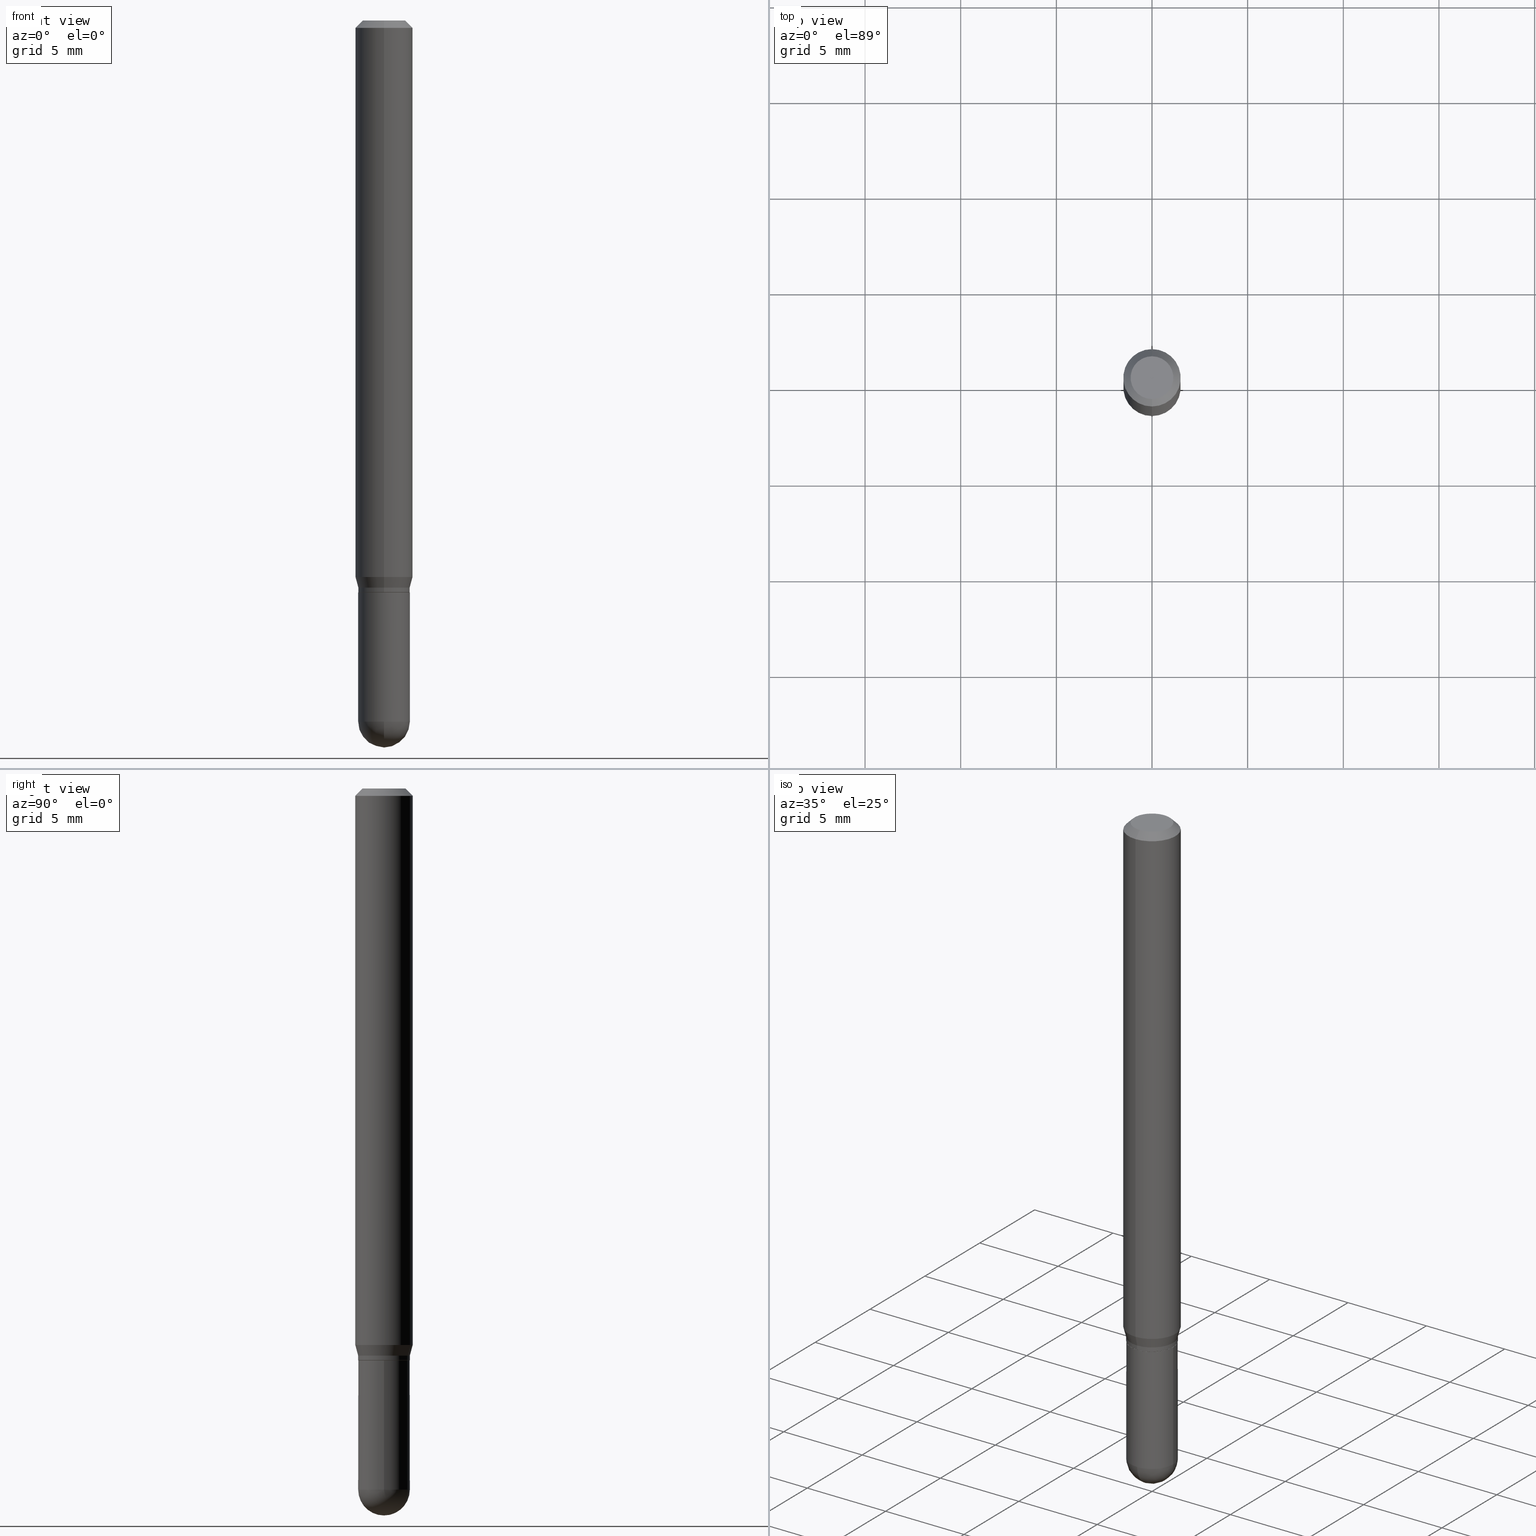
[diagram: canonical four-view strip — front | top / right | iso, engineering-drawing reading convention]
A machine part, canonical four-view strip (front | top / right | iso — engineering-drawing reading convention). The complete STEP part file that produces these views, byte-faithful:
ISO-10303-21;
HEADER;
FILE_DESCRIPTION (( 'STEP AP203' ),
    '1' );
FILE_NAME ('02976.STEP',
    '2024-03-07T22:15:17',
    ( '' ),
    ( '' ),
    'SwSTEP 2.0',
    'SolidWorks 2023',
    '' );
FILE_SCHEMA (( 'CONFIG_CONTROL_DESIGN' ));
ENDSEC;

DATA;
#1 = CYLINDRICAL_SURFACE ( 'NONE', #380, 0.05315000000000005831 ) ;
#2 = PERSON_AND_ORGANIZATION_ROLE ( 'design_owner' ) ;
#3 = EDGE_LOOP ( 'NONE', ( #191, #205, #479, #405 ) ) ;
#4 = EDGE_CURVE ( 'NONE', #225, #394, #244, .T. ) ;
#5 = FACE_OUTER_BOUND ( 'NONE', #474, .T. ) ;
#6 = ORIENTED_EDGE ( 'NONE', *, *, #375, .T. ) ;
#7 = CALENDAR_DATE ( 2024, 7, 3 ) ;
#8 = AXIS2_PLACEMENT_3D ( 'NONE', #67, #184, #473 ) ;
#9 = DIRECTION ( 'NONE',  ( -2.445529558203233755E-29, 3.491394338495440431E-15, 1.000000000000000000 ) ) ;
#10 = VERTEX_POINT ( 'NONE', #155 ) ;
#11 = CALENDAR_DATE ( 2024, 7, 3 ) ;
#12 = CARTESIAN_POINT ( 'NONE',  ( 2.877654631137744855E-29, -4.108323718107584800E-15, -1.176699999999999857 ) ) ;
#13 = ORIENTED_EDGE ( 'NONE', *, *, #189, .F. ) ;
#14 = DIMENSIONAL_EXPONENTS ( 1.000000000000000000, 0.000000000000000000, 0.000000000000000000, 0.000000000000000000, 0.000000000000000000, 0.000000000000000000, 0.000000000000000000 ) ;
#15 = DIRECTION ( 'NONE',  ( -2.445529558203233755E-29, 3.491394338495440431E-15, 1.000000000000000000 ) ) ;
#16 = ORIENTED_EDGE ( 'NONE', *, *, #285, .T. ) ;
#17 = EDGE_CURVE ( 'NONE', #70, #512, #123, .T. ) ;
#18 = DIRECTION ( 'NONE',  ( -2.445468806185136597E-29, 3.491481338843145583E-15, 1.000000000000000000 ) ) ;
#19 = CARTESIAN_POINT ( 'NONE',  ( 3.668294337304873001E-31, -5.237091507743192669E-17, -0.01500000000000009139 ) ) ;
#20 = VECTOR ( 'NONE', #226, 39.37007874015748143 ) ;
#21 = CARTESIAN_POINT ( 'NONE',  ( 2.854422100334814003E-29, -4.075155471891877545E-15, -1.167200000000000015 ) ) ;
#22 = CARTESIAN_POINT ( 'NONE',  ( 0.000000000000000000, 0.000000000000000000, 0.000000000000000000 ) ) ;
#23 = APPLICATION_CONTEXT ( 'configuration controlled 3d designs of mechanical parts and assemblies' ) ;
#24 = EDGE_CURVE ( 'NONE', #115, #266, #98, .T. ) ;
#25 = CARTESIAN_POINT ( 'NONE',  ( 3.986144747614447305E-16, 0.05314999999999599212, -1.167200000000000015 ) ) ;
#26 = AXIS2_PLACEMENT_3D ( 'NONE', #374, #412, #138 ) ;
#27 = DIRECTION ( 'NONE',  ( 2.445529558203233475E-29, -3.491394338495440431E-15, -1.000000000000000000 ) ) ;
#28 = DIRECTION ( 'NONE',  ( -6.982962677686266711E-15, -1.000000000000000000, 3.491394338495440431E-15 ) ) ;
#29 = CONICAL_SURFACE ( 'NONE', #173, 0.05904999999999999832, 0.7853981633974483900 ) ;
#30 = EDGE_LOOP ( 'NONE', ( #77, #160, #112, #439 ) ) ;
#31 =( LENGTH_UNIT ( ) NAMED_UNIT ( * ) SI_UNIT ( $, .METRE. ) );
#32 = VERTEX_POINT ( 'NONE', #510 ) ;
#33 = ADVANCED_FACE ( 'NONE', ( #5 ), #334, .T. ) ;
#34 = DIRECTION ( 'NONE',  ( -2.445529558203233755E-29, 3.491394338495440431E-15, 1.000000000000000000 ) ) ;
#35 = VERTEX_POINT ( 'NONE', #154 ) ;
#36 = CYLINDRICAL_SURFACE ( 'NONE', #103, 0.05904999999999999832 ) ;
#37 = PERSON_AND_ORGANIZATION ( #78, #256 ) ;
#38 = ORIENTED_EDGE ( 'NONE', *, *, #506, .F. ) ;
#39 = APPROVAL_PERSON_ORGANIZATION ( #37, #56, #437 ) ;
#40 = DIRECTION ( 'NONE',  ( -2.445468806185136597E-29, 3.491481338843145583E-15, 1.000000000000000000 ) ) ;
#41 = CARTESIAN_POINT ( 'NONE',  ( 2.878877395916846125E-29, -4.110069415276832052E-15, -1.177200000000000024 ) ) ;
#42 = ORIENTED_EDGE ( 'NONE', *, *, #24, .F. ) ;
#43 = DIRECTION ( 'NONE',  ( -1.000000000000000000, 6.982962677686265922E-15, -4.876176775795935793E-29 ) ) ;
#44 = ORIENTED_EDGE ( 'NONE', *, *, #181, .F. ) ;
#45 = CIRCLE ( 'NONE', #55, 0.05265000000000000235 ) ;
#46 = CARTESIAN_POINT ( 'NONE',  ( 3.524144005057854329E-29, -5.044541995621184733E-15, -1.442949999999999955 ) ) ;
#47 = ORIENTED_EDGE ( 'NONE', *, *, #97, .F. ) ;
#48 = CARTESIAN_POINT ( 'NONE',  ( 4.195754854663672510E-16, 0.05904999999999994281, -0.01500000000000029955 ) ) ;
#49 = ORIENTED_EDGE ( 'NONE', *, *, #4, .T. ) ;
#50 = CARTESIAN_POINT ( 'NONE',  ( 3.651848067693100163E-29, -5.233368727649432255E-15, -1.496099999999999985 ) ) ;
#51 = DIRECTION ( 'NONE',  ( -2.445468806185136597E-29, 3.491481338843145583E-15, 1.000000000000000000 ) ) ;
#52 = CYLINDRICAL_SURFACE ( 'NONE', #495, 0.05315000000000000280 ) ;
#53 = DIRECTION ( 'NONE',  ( -6.982962677686265133E-15, -1.000000000000000000, 3.491394338495440037E-15 ) ) ;
#54 = AXIS2_PLACEMENT_3D ( 'NONE', #164, #168, #332 ) ;
#55 = AXIS2_PLACEMENT_3D ( 'NONE', #204, #9, #130 ) ;
#56 = APPROVAL ( #273, 'UNSPECIFIED' ) ;
#57 = AXIS2_PLACEMENT_3D ( 'NONE', #147, #264, #144 ) ;
#58 = CONICAL_SURFACE ( 'NONE', #214, 0.05315000000000005831, 0.2617993877991513507 ) ;
#59 = EDGE_CURVE ( 'NONE', #10, #35, #464, .T. ) ;
#60 = ADVANCED_FACE ( 'NONE', ( #396 ), #36, .T. ) ;
#61 = FACE_OUTER_BOUND ( 'NONE', #89, .T. ) ;
#62 = ORIENTED_EDGE ( 'NONE', *, *, #139, .F. ) ;
#63 = DIRECTION ( 'NONE',  ( 6.982962677686265922E-15, 1.000000000000000000, -3.505890868245046092E-15 ) ) ;
#64 = AXIS2_PLACEMENT_3D ( 'NONE', #19, #88, #373 ) ;
#65 = DIRECTION ( 'NONE',  ( -2.445529558203233755E-29, 3.491394338495440431E-15, 1.000000000000000000 ) ) ;
#66 = DIRECTION ( 'NONE',  ( -6.982962677686265922E-15, -1.000000000000000000, 2.594347572330734199E-15 ) ) ;
#67 = CARTESIAN_POINT ( 'NONE',  ( 3.528689213884843040E-29, -5.038032997883716336E-15, -1.442949999999999955 ) ) ;
#68 = ORIENTED_EDGE ( 'NONE', *, *, #4, .F. ) ;
#69 = CARTESIAN_POINT ( 'NONE',  ( -4.123439461173460774E-16, -0.05905000000000400207, -1.145180900235343913 ) ) ;
#70 = VERTEX_POINT ( 'NONE', #468 ) ;
#71 = DIRECTION ( 'NONE',  ( 5.024295867788190974E-15, 0.7071067811865681119, 0.7071067811865270336 ) ) ;
#72 = EDGE_LOOP ( 'NONE', ( #38, #485, #463, #320 ) ) ;
#73 = LOCAL_TIME ( 17, 15, 17.00000000000000000, #108 ) ;
#74 = CARTESIAN_POINT ( 'NONE',  ( -3.711444663189969169E-16, -0.05315000000000413144, -1.167199999999999793 ) ) ;
#75 = ADVANCED_FACE ( 'NONE', ( #186 ), #508, .T. ) ;
#76 = EDGE_CURVE ( 'NONE', #118, #232, #403, .T. ) ;
#77 = ORIENTED_EDGE ( 'NONE', *, *, #187, .F. ) ;
#78 = PERSON ( 'UNSPECIFIED', 'UNSPECIFIED', 'UNSPECIFIED', ('UNSPECIFIED'), ('UNSPECIFIED'), ('UNSPECIFIED') ) ;
#79 = CARTESIAN_POINT ( 'NONE',  ( 0.000000000000000000, 0.000000000000000000, 0.000000000000000000 ) ) ;
#80 = LINE ( 'NONE', #453, #489 ) ;
#81 = ORIENTED_EDGE ( 'NONE', *, *, #24, .T. ) ;
#82 = COORDINATED_UNIVERSAL_TIME_OFFSET ( 5, 0, .BEHIND. ) ;
#83 = CIRCLE ( 'NONE', #8, 0.05315000000000000280 ) ;
#84 = LINE ( 'NONE', #90, #95 ) ;
#85 = EDGE_LOOP ( 'NONE', ( #120, #217, #16, #105, #222 ) ) ;
#86 = ORIENTED_EDGE ( 'NONE', *, *, #236, .T. ) ;
#87 = CARTESIAN_POINT ( 'NONE',  ( 3.528689213884843040E-29, -5.038032997883716336E-15, -1.442949999999999955 ) ) ;
#88 = DIRECTION ( 'NONE',  ( -2.445529558203233755E-29, 3.491394338495440431E-15, 1.000000000000000000 ) ) ;
#89 = EDGE_LOOP ( 'NONE', ( #109, #421, #368, #197 ) ) ;
#90 = CARTESIAN_POINT ( 'NONE',  ( 3.776534640564936138E-16, 0.05315000000000005831, -1.855676090910328648E-16 ) ) ;
#91 = DIRECTION ( 'NONE',  ( -6.982962677686265922E-15, -1.000000000000000000, 2.594347572330734199E-15 ) ) ;
#92 = DATE_AND_TIME ( #7, #190 ) ;
#93 = DIRECTION ( 'NONE',  ( -2.445529558203233755E-29, 3.491394338495440431E-15, 1.000000000000000000 ) ) ;
#94 = CARTESIAN_POINT ( 'NONE',  ( 2.878805878641142370E-29, -4.110171832086151297E-15, -1.177200000000000024 ) ) ;
#95 = VECTOR ( 'NONE', #119, 39.37007874015748143 ) ;
#96 = APPROVAL ( #206, 'UNSPECIFIED' ) ;
#97 = EDGE_CURVE ( 'NONE', #266, #203, #117, .T. ) ;
#98 = CIRCLE ( 'NONE', #298, 0.05904999999999999832 ) ;
#99 = EDGE_CURVE ( 'NONE', #512, #503, #196, .T. ) ;
#100 = CIRCLE ( 'NONE', #250, 0.05315000000000000280 ) ;
#101 = ORIENTED_EDGE ( 'NONE', *, *, #172, .F. ) ;
#102 = CARTESIAN_POINT ( 'NONE',  ( 3.741007503777215087E-16, 0.05264999999999589453, -1.177200000000000024 ) ) ;
#103 = AXIS2_PLACEMENT_3D ( 'NONE', #183, #261, #345 ) ;
#104 = AXIS2_PLACEMENT_3D ( 'NONE', #444, #367, #484 ) ;
#105 = ORIENTED_EDGE ( 'NONE', *, *, #243, .T. ) ;
#106 = CARTESIAN_POINT ( 'NONE',  ( 3.668294337304873001E-31, -5.237091507743192669E-17, -0.01500000000000009139 ) ) ;
#107 = UNCERTAINTY_MEASURE_WITH_UNIT (LENGTH_MEASURE( 1.000000000000000082E-05 ), #259, 'distance_accuracy_value', 'NONE');
#108 = COORDINATED_UNIVERSAL_TIME_OFFSET ( 5, 0, .BEHIND. ) ;
#109 = ORIENTED_EDGE ( 'NONE', *, *, #283, .F. ) ;
#110 = CARTESIAN_POINT ( 'NONE',  ( 2.241783815963458696E-45, -3.200513891533619113E-31, -9.166864528149599490E-17 ) ) ;
#111 = DIRECTION ( 'NONE',  ( 1.000000000000000000, -6.982962677686265922E-15, 4.883557194083112901E-29 ) ) ;
#112 = ORIENTED_EDGE ( 'NONE', *, *, #375, .F. ) ;
#113 = DIRECTION ( 'NONE',  ( -6.982962677686265922E-15, -1.000000000000000000, 3.491394338495440431E-15 ) ) ;
#114 = EDGE_CURVE ( 'NONE', #203, #503, #351, .T. ) ;
#115 = VERTEX_POINT ( 'NONE', #69 ) ;
#116 = CIRCLE ( 'NONE', #271, 0.05314999999999998198 ) ;
#117 = LINE ( 'NONE', #470, #20 ) ;
#118 = VERTEX_POINT ( 'NONE', #303 ) ;
#119 = DIRECTION ( 'NONE',  ( -2.445529558203233755E-29, 3.491394338495440431E-15, 1.000000000000000000 ) ) ;
#120 = ORIENTED_EDGE ( 'NONE', *, *, #291, .F. ) ;
#121 = DIRECTION ( 'NONE',  ( -2.445468806185136877E-29, 3.491481338843145188E-15, 1.000000000000000000 ) ) ;
#122 = PERSON_AND_ORGANIZATION_ROLE ( 'classification_officer' ) ;
#123 = CIRCLE ( 'NONE', #156, 0.04404999999999999888 ) ;
#124 = AXIS2_PLACEMENT_3D ( 'NONE', #21, #448, #242 ) ;
#125 = DIRECTION ( 'NONE',  ( -2.445529558203233755E-29, 3.491394338495440431E-15, 1.000000000000000000 ) ) ;
#126 = ORIENTED_EDGE ( 'NONE', *, *, #291, .T. ) ;
#127 = DIRECTION ( 'NONE',  ( -2.445529558203233755E-29, 3.491394338495440431E-15, 1.000000000000000000 ) ) ;
#128 = CARTESIAN_POINT ( 'NONE',  ( 2.854422100334814003E-29, -4.075155471891877545E-15, -1.167200000000000015 ) ) ;
#129 = SHAPE_DEFINITION_REPRESENTATION ( #436, #329 ) ;
#130 = DIRECTION ( 'NONE',  ( -6.982962677686265922E-15, -1.000000000000000000, 2.594347572330734199E-15 ) ) ;
#131 = CARTESIAN_POINT ( 'NONE',  ( -3.711444663189969662E-16, -0.05315000000000420777, -1.176699999999999857 ) ) ;
#132 = EDGE_CURVE ( 'NONE', #469, #269, #361, .T. ) ;
#133 = AXIS2_PLACEMENT_3D ( 'NONE', #312, #472, #113 ) ;
#134 = AXIS2_PLACEMENT_3D ( 'NONE', #328, #496, #300 ) ;
#135 = DIRECTION ( 'NONE',  ( -2.445529558203233755E-29, 3.491394338495440431E-15, 1.000000000000000000 ) ) ;
#136 = CLOSED_SHELL ( 'NONE', ( #150, #401, #75, #60, #142, #498, #179, #452, #344, #176, #33, #459 ) ) ;
#137 = CC_DESIGN_APPROVAL ( #56, ( #161 ) ) ;
#138 = DIRECTION ( 'NONE',  ( 1.000000000000000000, -6.982962677686260400E-15, 0.000000000000000000 ) ) ;
#139 = EDGE_CURVE ( 'NONE', #115, #503, #385, .T. ) ;
#140 = CC_DESIGN_DATE_AND_TIME_ASSIGNMENT ( #398, #322, ( #161 ) ) ;
#141 = DIRECTION ( 'NONE',  ( -6.982962677686265922E-15, -1.000000000000000000, 4.626330217890369336E-15 ) ) ;
#142 = ADVANCED_FACE ( 'NONE', ( #230 ), #422, .T. ) ;
#143 = ORIENTED_EDGE ( 'NONE', *, *, #450, .T. ) ;
#144 = DIRECTION ( 'NONE',  ( 6.982962677686265922E-15, 1.000000000000000000, -3.505890868245046092E-15 ) ) ;
#145 = VECTOR ( 'NONE', #402, 39.37007874015748143 ) ;
#146 = ORIENTED_EDGE ( 'NONE', *, *, #236, .F. ) ;
#147 = CARTESIAN_POINT ( 'NONE',  ( 3.668294337304873001E-31, -5.237091507743192669E-17, -0.01500000000000009139 ) ) ;
#148 = PERSON_AND_ORGANIZATION ( #78, #256 ) ;
#149 = ORIENTED_EDGE ( 'NONE', *, *, #76, .F. ) ;
#150 = ADVANCED_FACE ( 'NONE', ( #220 ), #1, .T. ) ;
#151 = DIRECTION ( 'NONE',  ( -2.445529558203233755E-29, 3.491394338495440431E-15, 1.000000000000000000 ) ) ;
#152 = DIRECTION ( 'NONE',  ( 1.000000000000000000, -7.105427357601001070E-15, 4.926315508542082329E-29 ) ) ;
#153 = ORIENTED_EDGE ( 'NONE', *, *, #243, .F. ) ;
#154 = CARTESIAN_POINT ( 'NONE',  ( 3.776534640565220621E-16, 0.05314999999999591579, -1.176700000000000079 ) ) ;
#155 = CARTESIAN_POINT ( 'NONE',  ( 3.758771072171219580E-16, 0.05264999999999589453, -1.177200000000000024 ) ) ;
#156 = AXIS2_PLACEMENT_3D ( 'NONE', #110, #501, #309 ) ;
#157 = APPROVAL_ROLE ( '' ) ;
#158 = AXIS2_PLACEMENT_3D ( 'NONE', #258, #460, #53 ) ;
#159 = DIRECTION ( 'NONE',  ( -6.982962677686265922E-15, -1.000000000000000000, 3.491394338495440431E-15 ) ) ;
#160 = ORIENTED_EDGE ( 'NONE', *, *, #506, .T. ) ;
#161 = PRODUCT_DEFINITION ( 'UNKNOWN', '', #211, #313 ) ;
#162 = PERSON_AND_ORGANIZATION ( #78, #256 ) ;
#163 = CARTESIAN_POINT ( 'NONE',  ( -0.05315000000000000280, -4.196448950928440351E-15, -1.177200000000000024 ) ) ;
#164 = CARTESIAN_POINT ( 'NONE',  ( 2.877654631137744855E-29, -4.108323718107584800E-15, -1.176699999999999857 ) ) ;
#165 = VERTEX_POINT ( 'NONE', #74 ) ;
#166 = PERSON_AND_ORGANIZATION ( #78, #256 ) ;
#167 = AXIS2_PLACEMENT_3D ( 'NONE', #365, #125, #159 ) ;
#168 = DIRECTION ( 'NONE',  ( -2.445529558203233755E-29, 3.491394338495440431E-15, 1.000000000000000000 ) ) ;
#169 = DATE_AND_TIME ( #481, #415 ) ;
#170 = DIRECTION ( 'NONE',  ( 1.000000000000000000, -6.982962677686267499E-15, 4.876176775795935232E-29 ) ) ;
#171 = DIRECTION ( 'NONE',  ( -2.445529558203233755E-29, 3.491394338495440431E-15, 1.000000000000000000 ) ) ;
#172 = EDGE_CURVE ( 'NONE', #442, #266, #234, .T. ) ;
#173 = AXIS2_PLACEMENT_3D ( 'NONE', #419, #488, #63 ) ;
#174 = LOCAL_TIME ( 17, 15, 17.00000000000000000, #330 ) ;
#175 = MANIFOLD_SOLID_BREP ( 'Body-Move/Copy2[2]', #136 ) ;
#176 = ADVANCED_FACE ( 'NONE', ( #399 ), #180, .F. ) ;
#177 = CARTESIAN_POINT ( 'NONE',  ( 3.776534640565284223E-16, 0.05314999999999495128, -1.442950000000000177 ) ) ;
#178 = MANIFOLD_SOLID_BREP ( 'Body-Move/Copy2[1]', #249 ) ;
#179 = ADVANCED_FACE ( 'NONE', ( #270 ), #360, .T. ) ;
#180 = PLANE ( 'NONE',  #133 ) ;
#181 = EDGE_CURVE ( 'NONE', #225, #10, #390, .T. ) ;
#182 = ORIENTED_EDGE ( 'NONE', *, *, #377, .T. ) ;
#183 = CARTESIAN_POINT ( 'NONE',  ( 0.000000000000000000, 0.000000000000000000, 0.000000000000000000 ) ) ;
#184 = DIRECTION ( 'NONE',  ( -2.445468806185136597E-29, 3.491481338843145583E-15, 1.000000000000000000 ) ) ;
#185 = ORIENTED_EDGE ( 'NONE', *, *, #296, .T. ) ;
#186 = FACE_OUTER_BOUND ( 'NONE', #306, .T. ) ;
#187 = EDGE_CURVE ( 'NONE', #311, #269, #116, .T. ) ;
#188 = VECTOR ( 'NONE', #438, 39.37007874015748143 ) ;
#189 = EDGE_CURVE ( 'NONE', #35, #394, #316, .T. ) ;
#190 = LOCAL_TIME ( 17, 15, 17.00000000000000000, #447 ) ;
#191 = ORIENTED_EDGE ( 'NONE', *, *, #224, .T. ) ;
#192 = DIRECTION ( 'NONE',  ( -2.445529558203233755E-29, 3.491394338495440431E-15, 1.000000000000000000 ) ) ;
#193 = CARTESIAN_POINT ( 'NONE',  ( 3.524144005057854329E-29, -5.044541995621184733E-15, -1.442949999999999955 ) ) ;
#194 = ORIENTED_EDGE ( 'NONE', *, *, #99, .F. ) ;
#195 = CC_DESIGN_PERSON_AND_ORGANIZATION_ASSIGNMENT ( #162, #122, ( #252 ) ) ;
#196 = LINE ( 'NONE', #358, #209 ) ;
#197 = ORIENTED_EDGE ( 'NONE', *, *, #296, .F. ) ;
#198 = EDGE_LOOP ( 'NONE', ( #200, #407, #432, #68 ) ) ;
#199 = PLANE ( 'NONE',  #414 ) ;
#200 = ORIENTED_EDGE ( 'NONE', *, *, #181, .T. ) ;
#201 = CIRCLE ( 'NONE', #124, 0.05315000000000005831 ) ;
#202 = CARTESIAN_POINT ( 'NONE',  ( 3.711444663190538628E-16, 0.05314999999999589497, -1.177200000000000024 ) ) ;
#203 = VERTEX_POINT ( 'NONE', #48 ) ;
#204 = CARTESIAN_POINT ( 'NONE',  ( 2.878877395916846125E-29, -4.110069415276832052E-15, -1.177200000000000024 ) ) ;
#205 = ORIENTED_EDGE ( 'NONE', *, *, #283, .T. ) ;
#206 = APPROVAL_STATUS ( 'not_yet_approved' ) ;
#207 = LINE ( 'NONE', #290, #456 ) ;
#208 = PERSON_AND_ORGANIZATION_ROLE ( 'creator' ) ;
#209 = VECTOR ( 'NONE', #391, 39.37007874015748143 ) ;
#210 = ADVANCED_FACE ( 'NONE', ( #491 ), #199, .F. ) ;
#211 = PRODUCT_DEFINITION_FORMATION_WITH_SPECIFIED_SOURCE ( 'ANY', '', #342, .NOT_KNOWN. ) ;
#212 = CARTESIAN_POINT ( 'NONE',  ( 0.000000000000000000, 0.000000000000000000, 0.000000000000000000 ) ) ;
#213 = FACE_OUTER_BOUND ( 'NONE', #400, .T. ) ;
#214 = AXIS2_PLACEMENT_3D ( 'NONE', #471, #65, #268 ) ;
#215 = CC_DESIGN_PERSON_AND_ORGANIZATION_ASSIGNMENT ( #465, #2, ( #342 ) ) ;
#216 = CYLINDRICAL_SURFACE ( 'NONE', #227, 0.05315000000000005831 ) ;
#217 = ORIENTED_EDGE ( 'NONE', *, *, #132, .T. ) ;
#218 =( NAMED_UNIT ( * ) PLANE_ANGLE_UNIT ( ) SI_UNIT ( $, .RADIAN. ) );
#219 = ORIENTED_EDGE ( 'NONE', *, *, #97, .T. ) ;
#220 = FACE_OUTER_BOUND ( 'NONE', #3, .T. ) ;
#221 = CARTESIAN_POINT ( 'NONE',  ( -3.536586717851222218E-16, -0.04404999999999999888, 6.212727532922813649E-17 ) ) ;
#222 = ORIENTED_EDGE ( 'NONE', *, *, #356, .F. ) ;
#223 = CARTESIAN_POINT ( 'NONE',  ( 3.776534640565222100E-16, 0.05314999999999599212, -1.167200000000000015 ) ) ;
#224 = EDGE_CURVE ( 'NONE', #394, #35, #423, .T. ) ;
#225 = VERTEX_POINT ( 'NONE', #278 ) ;
#226 = DIRECTION ( 'NONE',  ( -2.445529558203233755E-29, 3.491394338495440431E-15, 1.000000000000000000 ) ) ;
#227 = AXIS2_PLACEMENT_3D ( 'NONE', #22, #378, #28 ) ;
#228 = SPHERICAL_SURFACE ( 'NONE', #467, 0.05314999999999998198 ) ;
#229 = ORIENTED_EDGE ( 'NONE', *, *, #377, .F. ) ;
#230 = FACE_OUTER_BOUND ( 'NONE', #466, .T. ) ;
#231 = EDGE_CURVE ( 'NONE', #70, #203, #492, .T. ) ;
#232 = VERTEX_POINT ( 'NONE', #163 ) ;
#233 = CALENDAR_DATE ( 2024, 7, 3 ) ;
#234 = LINE ( 'NONE', #223, #255 ) ;
#235 = CARTESIAN_POINT ( 'NONE',  ( -3.711444663189897185E-16, -0.05315000000000504043, -1.442949999999999733 ) ) ;
#236 = EDGE_CURVE ( 'NONE', #10, #225, #45, .T. ) ;
#237 = EDGE_LOOP ( 'NONE', ( #81, #219, #389, #62 ) ) ;
#238 = PERSON_AND_ORGANIZATION ( #78, #256 ) ;
#239 = AXIS2_PLACEMENT_3D ( 'NONE', #87, #18, #287 ) ;
#240 = LINE ( 'NONE', #246, #509 ) ;
#241 = ORIENTED_EDGE ( 'NONE', *, *, #99, .T. ) ;
#242 = DIRECTION ( 'NONE',  ( -6.982962677686266711E-15, -1.000000000000000000, 2.569941668545870409E-15 ) ) ;
#243 = EDGE_CURVE ( 'NONE', #32, #118, #80, .T. ) ;
#244 = LINE ( 'NONE', #397, #379 ) ;
#245 = PERSON_AND_ORGANIZATION_ROLE ( 'design_supplier' ) ;
#246 = CARTESIAN_POINT ( 'NONE',  ( -3.711444663190254638E-16, -0.05315000000000005831, 1.855676090910328648E-16 ) ) ;
#247 = CARTESIAN_POINT ( 'NONE',  ( 2.800573741015322024E-29, -3.998278111634791463E-15, -1.145180900235343913 ) ) ;
#248 = PERSON_AND_ORGANIZATION ( #78, #256 ) ;
#249 = CLOSED_SHELL ( 'NONE', ( #338, #476, #210, #366, #253 ) ) ;
#250 = AXIS2_PLACEMENT_3D ( 'NONE', #94, #51, #370 ) ;
#251 = DIRECTION ( 'NONE',  ( -1.000000000000000000, 6.982962677686265922E-15, -4.883557194083112340E-29 ) ) ;
#252 = SECURITY_CLASSIFICATION ( '', '', #277 ) ;
#253 = ADVANCED_FACE ( 'NONE', ( #319 ), #321, .T. ) ;
#254 = CC_DESIGN_PERSON_AND_ORGANIZATION_ASSIGNMENT ( #166, #208, ( #211 ) ) ;
#255 = VECTOR ( 'NONE', #388, 39.37007874015748854 ) ;
#256 = ORGANIZATION ( 'UNSPECIFIED', 'UNSPECIFIED', '' ) ;
#257 = CARTESIAN_POINT ( 'NONE',  ( 2.878877395916846125E-29, -4.110069415276832052E-15, -1.177200000000000024 ) ) ;
#258 = CARTESIAN_POINT ( 'NONE',  ( 2.241783815963458696E-45, -3.200513891533619113E-31, -9.166864528149599490E-17 ) ) ;
#259 =( CONVERSION_BASED_UNIT ( 'INCH', #349 ) LENGTH_UNIT ( ) NAMED_UNIT ( #14 ) );
#260 = ORIENTED_EDGE ( 'NONE', *, *, #331, .F. ) ;
#261 = DIRECTION ( 'NONE',  ( -2.445529558203233755E-29, 3.491394338495440431E-15, 1.000000000000000000 ) ) ;
#262 = CONICAL_SURFACE ( 'NONE', #362, 0.05265000000000000235, 0.7853981633974739252 ) ;
#263 = FACE_OUTER_BOUND ( 'NONE', #30, .T. ) ;
#264 = DIRECTION ( 'NONE',  ( 2.445529558203233755E-29, -3.491394338495440431E-15, -1.000000000000000000 ) ) ;
#265 = CARTESIAN_POINT ( 'NONE',  ( -4.123439461173736383E-16, -0.05905000000000005383, -0.01499999999999988495 ) ) ;
#266 = VERTEX_POINT ( 'NONE', #284 ) ;
#267 = CARTESIAN_POINT ( 'NONE',  ( 2.800573741015322024E-29, -3.998278111634791463E-15, -1.145180900235343913 ) ) ;
#268 = DIRECTION ( 'NONE',  ( -6.982962677686266711E-15, -1.000000000000000000, 2.569941668545870409E-15 ) ) ;
#269 = VERTEX_POINT ( 'NONE', #235 ) ;
#270 = FACE_OUTER_BOUND ( 'NONE', #350, .T. ) ;
#271 = AXIS2_PLACEMENT_3D ( 'NONE', #46, #251, #276 ) ;
#272 = APPROVAL_PERSON_ORGANIZATION ( #440, #480, #157 ) ;
#273 = APPROVAL_STATUS ( 'not_yet_approved' ) ;
#274 = CARTESIAN_POINT ( 'NONE',  ( -4.123439461173739834E-16, -0.05904999999999999832, 2.061668356881557438E-16 ) ) ;
#275 = ORIENTED_EDGE ( 'NONE', *, *, #231, .F. ) ;
#276 = DIRECTION ( 'NONE',  ( -6.982962677686265922E-15, -1.000000000000000000, 0.000000000000000000 ) ) ;
#277 = SECURITY_CLASSIFICATION_LEVEL ( 'unclassified' ) ;
#278 = CARTESIAN_POINT ( 'NONE',  ( -3.676529849801530716E-16, -0.05265000000000411018, -1.177199999999999802 ) ) ;
#279 = EDGE_LOOP ( 'NONE', ( #384, #143 ) ) ;
#280 = AXIS2_PLACEMENT_3D ( 'NONE', #41, #34, #66 ) ;
#281 = APPROVAL_ROLE ( '' ) ;
#282 = CIRCLE ( 'NONE', #497, 0.05314999999999998198 ) ;
#283 = EDGE_CURVE ( 'NONE', #35, #442, #84, .T. ) ;
#284 = CARTESIAN_POINT ( 'NONE',  ( 4.195754854663670538E-16, 0.05904999999999599458, -1.145180900235344135 ) ) ;
#285 = EDGE_CURVE ( 'NONE', #269, #32, #376, .T. ) ;
#286 = ORIENTED_EDGE ( 'NONE', *, *, #114, .T. ) ;
#287 = DIRECTION ( 'NONE',  ( 1.000000000000000000, -6.982962677686260400E-15, 0.000000000000000000 ) ) ;
#288 = DIRECTION ( 'NONE',  ( -2.445529558203233755E-29, 3.491394338495440431E-15, 1.000000000000000000 ) ) ;
#289 = APPLICATION_CONTEXT ( 'configuration controlled 3d designs of mechanical parts and assemblies' ) ;
#290 = CARTESIAN_POINT ( 'NONE',  ( -3.711444663189969169E-16, -0.05315000000000413144, -1.167199999999999793 ) ) ;
#291 = EDGE_CURVE ( 'NONE', #469, #232, #482, .T. ) ;
#292 = CC_DESIGN_PERSON_AND_ORGANIZATION_ASSIGNMENT ( #248, #245, ( #211 ) ) ;
#293 = AXIS2_PLACEMENT_3D ( 'NONE', #106, #352, #477 ) ;
#294 = CIRCLE ( 'NONE', #341, 0.05315000000000005831 ) ;
#295 = APPROVAL_PERSON_ORGANIZATION ( #238, #96, #281 ) ;
#296 = EDGE_CURVE ( 'NONE', #442, #165, #201, .T. ) ;
#297 = DIRECTION ( 'NONE',  ( 6.982962677686265922E-15, 1.000000000000000000, -3.491394338495440431E-15 ) ) ;
#298 = AXIS2_PLACEMENT_3D ( 'NONE', #267, #430, #141 ) ;
#299 = VECTOR ( 'NONE', #487, 39.37007874015748143 ) ;
#300 = DIRECTION ( 'NONE',  ( -6.982962677686265922E-15, -1.000000000000000000, 5.139883337091747917E-15 ) ) ;
#301 = CC_DESIGN_DATE_AND_TIME_ASSIGNMENT ( #443, #449, ( #252 ) ) ;
#302 = APPLICATION_PROTOCOL_DEFINITION ( 'international standard', 'config_control_design', 1994, #289 ) ;
#303 = CARTESIAN_POINT ( 'NONE',  ( 0.05315000000000000280, -4.481316298405176366E-15, -1.177200000000000024 ) ) ;
#304 = EDGE_CURVE ( 'NONE', #394, #165, #240, .T. ) ;
#305 = DIRECTION ( 'NONE',  ( 0.000000000000000000, 0.000000000000000000, 1.000000000000000000 ) ) ;
#306 = EDGE_LOOP ( 'NONE', ( #410, #241, #347, #275 ) ) ;
#307 = DIRECTION ( 'NONE',  ( -6.982962677686266711E-15, -1.000000000000000000, 2.569941668545870409E-15 ) ) ;
#308 = APPLICATION_PROTOCOL_DEFINITION ( 'international standard', 'config_control_design', 1994, #23 ) ;
#309 = DIRECTION ( 'NONE',  ( -6.982962677686265133E-15, -1.000000000000000000, 3.491394338495440037E-15 ) ) ;
#310 = PERSON_AND_ORGANIZATION_ROLE ( 'creator' ) ;
#311 = VERTEX_POINT ( 'NONE', #50 ) ;
#312 = CARTESIAN_POINT ( 'NONE',  ( 2.878877395916846125E-29, -4.110069415276832052E-15, -1.177200000000000024 ) ) ;
#313 = DESIGN_CONTEXT ( 'detailed design', #23, 'design' ) ;
#314 = ORIENTED_EDGE ( 'NONE', *, *, #17, .F. ) ;
#315 = DIRECTION ( 'NONE',  ( -2.445468806185136597E-29, 3.491481338843145583E-15, 1.000000000000000000 ) ) ;
#316 = CIRCLE ( 'NONE', #54, 0.05315000000000005831 ) ;
#317 = ORIENTED_EDGE ( 'NONE', *, *, #76, .T. ) ;
#318 = AXIS2_PLACEMENT_3D ( 'NONE', #12, #127, #408 ) ;
#319 = FACE_OUTER_BOUND ( 'NONE', #85, .T. ) ;
#320 = ORIENTED_EDGE ( 'NONE', *, *, #505, .F. ) ;
#321 = CYLINDRICAL_SURFACE ( 'NONE', #104, 0.05315000000000000280 ) ;
#322 = DATE_TIME_ROLE ( 'creation_date' ) ;
#323 = CARTESIAN_POINT ( 'NONE',  ( 4.123439461173743285E-16, 0.05904999999999994975, -0.01500000000000029955 ) ) ;
#324 = ORIENTED_EDGE ( 'NONE', *, *, #139, .T. ) ;
#325 = APPROVAL_DATE_TIME ( #169, #480 ) ;
#326 = AXIS2_PLACEMENT_3D ( 'NONE', #409, #27, #297 ) ;
#327 = FACE_OUTER_BOUND ( 'NONE', #354, .T. ) ;
#328 = CARTESIAN_POINT ( 'NONE',  ( 3.524144005057854329E-29, -5.044541995621184733E-15, -1.442949999999999955 ) ) ;
#329 = ADVANCED_BREP_SHAPE_REPRESENTATION ( '02976', ( #178, #175, #382 ), #418 ) ;
#330 = COORDINATED_UNIVERSAL_TIME_OFFSET ( 5, 0, .BEHIND. ) ;
#331 = EDGE_CURVE ( 'NONE', #165, #115, #207, .T. ) ;
#332 = DIRECTION ( 'NONE',  ( -6.982962677686266711E-15, -1.000000000000000000, 2.569941668545870409E-15 ) ) ;
#333 = CARTESIAN_POINT ( 'NONE',  ( -0.05315000000000000280, -4.196448950928440351E-15, -1.442949999999999955 ) ) ;
#334 = CONICAL_SURFACE ( 'NONE', #280, 0.05265000000000000235, 0.7853981633974739252 ) ;
#335 = AXIS2_PLACEMENT_3D ( 'NONE', #247, #171, #454 ) ;
#336 = CC_DESIGN_SECURITY_CLASSIFICATION ( #252, ( #211 ) ) ;
#337 = FACE_OUTER_BOUND ( 'NONE', #279, .T. ) ;
#338 = ADVANCED_FACE ( 'NONE', ( #327 ), #52, .T. ) ;
#339 = SPHERICAL_SURFACE ( 'NONE', #134, 0.05314999999999998198 ) ;
#340 = EDGE_LOOP ( 'NONE', ( #317, #357 ) ) ;
#341 = AXIS2_PLACEMENT_3D ( 'NONE', #128, #135, #416 ) ;
#342 = PRODUCT ( '02976', '02976', '', ( #420 ) ) ;
#343 = FACE_OUTER_BOUND ( 'NONE', #427, .T. ) ;
#344 = ADVANCED_FACE ( 'NONE', ( #337 ), #500, .F. ) ;
#345 = DIRECTION ( 'NONE',  ( -6.982962677686265922E-15, -1.000000000000000000, 3.491394338495440431E-15 ) ) ;
#346 = DIRECTION ( 'NONE',  ( 1.000000000000000000, 0.000000000000000000, 0.000000000000000000 ) ) ;
#347 = ORIENTED_EDGE ( 'NONE', *, *, #413, .T. ) ;
#348 = DIRECTION ( 'NONE',  ( 1.000000000000000000, -6.982962677686260400E-15, 0.000000000000000000 ) ) ;
#349 = LENGTH_MEASURE_WITH_UNIT ( LENGTH_MEASURE( 0.02539999999999999897 ), #31 );
#350 = EDGE_LOOP ( 'NONE', ( #47, #182, #324, #458 ) ) ;
#351 = CIRCLE ( 'NONE', #293, 0.05904999999999999832 ) ;
#352 = DIRECTION ( 'NONE',  ( -2.445529558203233755E-29, 3.491394338495440431E-15, 1.000000000000000000 ) ) ;
#353 = DATE_AND_TIME ( #233, #73 ) ;
#354 = EDGE_LOOP ( 'NONE', ( #507, #126, #149, #153, #6 ) ) ;
#355 = DIRECTION ( 'NONE',  ( 1.000000000000000000, -6.982962677686269077E-15, 0.000000000000000000 ) ) ;
#356 = EDGE_CURVE ( 'NONE', #232, #118, #100, .T. ) ;
#357 = ORIENTED_EDGE ( 'NONE', *, *, #356, .T. ) ;
#358 = CARTESIAN_POINT ( 'NONE',  ( -4.051124067684085231E-16, -0.05905000000000005383, -0.01499999999999988495 ) ) ;
#359 = DIRECTION ( 'NONE',  ( -4.937700262164674260E-15, -0.7071067811865632269, 0.7071067811865319186 ) ) ;
#360 = CYLINDRICAL_SURFACE ( 'NONE', #167, 0.05904999999999999832 ) ;
#361 = CIRCLE ( 'NONE', #417, 0.05315000000000000280 ) ;
#362 = AXIS2_PLACEMENT_3D ( 'NONE', #257, #288, #91 ) ;
#363 = VERTEX_POINT ( 'NONE', #177 ) ;
#364 = APPROVAL_STATUS ( 'not_yet_approved' ) ;
#365 = CARTESIAN_POINT ( 'NONE',  ( 0.000000000000000000, 0.000000000000000000, 0.000000000000000000 ) ) ;
#366 = ADVANCED_FACE ( 'NONE', ( #493 ), #339, .T. ) ;
#367 = DIRECTION ( 'NONE',  ( -2.445468806185136597E-29, 3.491481338843145583E-15, 1.000000000000000000 ) ) ;
#368 = ORIENTED_EDGE ( 'NONE', *, *, #304, .T. ) ;
#369 = DIRECTION ( 'NONE',  ( -1.807323732225338028E-15, -0.2588190451025192407, 0.9659258262890687563 ) ) ;
#370 = DIRECTION ( 'NONE',  ( 1.000000000000000000, -6.982962677686269077E-15, 0.000000000000000000 ) ) ;
#371 = AXIS2_PLACEMENT_3D ( 'NONE', #504, #192, #307 ) ;
#372 = DIRECTION ( 'NONE',  ( -2.445468806185136597E-29, 3.491481338843145583E-15, 1.000000000000000000 ) ) ;
#373 = DIRECTION ( 'NONE',  ( -6.982962677686265922E-15, -1.000000000000000000, 3.505890868245046092E-15 ) ) ;
#374 = CARTESIAN_POINT ( 'NONE',  ( 3.528689213884843040E-29, -5.038032997883716336E-15, -1.442949999999999955 ) ) ;
#375 = EDGE_CURVE ( 'NONE', #32, #363, #478, .T. ) ;
#376 = CIRCLE ( 'NONE', #239, 0.05315000000000000280 ) ;
#377 = EDGE_CURVE ( 'NONE', #266, #115, #445, .T. ) ;
#378 = DIRECTION ( 'NONE',  ( -2.445529558203233755E-29, 3.491394338495440431E-15, 1.000000000000000000 ) ) ;
#379 = VECTOR ( 'NONE', #359, 39.37007874015748143 ) ;
#380 = AXIS2_PLACEMENT_3D ( 'NONE', #79, #151, #428 ) ;
#381 = CC_DESIGN_PERSON_AND_ORGANIZATION_ASSIGNMENT ( #148, #310, ( #161 ) ) ;
#382 = AXIS2_PLACEMENT_3D ( 'NONE', #499, #305, #346 ) ;
#383 =( NAMED_UNIT ( * ) SI_UNIT ( $, .STERADIAN. ) SOLID_ANGLE_UNIT ( ) );
#384 = ORIENTED_EDGE ( 'NONE', *, *, #17, .T. ) ;
#385 = LINE ( 'NONE', #274, #188 ) ;
#386 = EDGE_CURVE ( 'NONE', #165, #442, #294, .T. ) ;
#387 = ORIENTED_EDGE ( 'NONE', *, *, #386, .T. ) ;
#388 = DIRECTION ( 'NONE',  ( 1.839019923739607415E-15, 0.2588190451025259575, 0.9659258262890667579 ) ) ;
#389 = ORIENTED_EDGE ( 'NONE', *, *, #413, .F. ) ;
#390 = CIRCLE ( 'NONE', #475, 0.05265000000000000235 ) ;
#391 = DIRECTION ( 'NONE',  ( -4.851104656540964275E-15, -0.7071067811865500152, -0.7071067811865450192 ) ) ;
#392 = CC_DESIGN_APPROVAL ( #96, ( #252 ) ) ;
#393 = CALENDAR_DATE ( 2024, 7, 3 ) ;
#394 = VERTEX_POINT ( 'NONE', #131 ) ;
#395 = ORIENTED_EDGE ( 'NONE', *, *, #59, .F. ) ;
#396 = FACE_OUTER_BOUND ( 'NONE', #237, .T. ) ;
#397 = CARTESIAN_POINT ( 'NONE',  ( -3.676529849801530716E-16, -0.05265000000000411018, -1.177199999999999802 ) ) ;
#398 = DATE_AND_TIME ( #393, #435 ) ;
#399 = FACE_OUTER_BOUND ( 'NONE', #490, .T. ) ;
#400 = EDGE_LOOP ( 'NONE', ( #194, #314, #483, #286 ) ) ;
#401 = ADVANCED_FACE ( 'NONE', ( #462 ), #262, .T. ) ;
#402 = DIRECTION ( 'NONE',  ( -2.445468806185136877E-29, 3.491481338843145188E-15, 1.000000000000000000 ) ) ;
#403 = CIRCLE ( 'NONE', #433, 0.05315000000000000280 ) ;
#404 = CIRCLE ( 'NONE', #64, 0.05904999999999999832 ) ;
#405 = ORIENTED_EDGE ( 'NONE', *, *, #304, .F. ) ;
#406 = DIRECTION ( 'NONE',  ( -6.982962677686265922E-15, -1.000000000000000000, 2.594347572330734199E-15 ) ) ;
#407 = ORIENTED_EDGE ( 'NONE', *, *, #59, .T. ) ;
#408 = DIRECTION ( 'NONE',  ( -6.982962677686266711E-15, -1.000000000000000000, 2.569941668545870409E-15 ) ) ;
#409 = CARTESIAN_POINT ( 'NONE',  ( 3.075995059520799729E-16, 0.04404999999999999888, -1.996302432514721350E-16 ) ) ;
#410 = ORIENTED_EDGE ( 'NONE', *, *, #450, .F. ) ;
#411 = DIRECTION ( 'NONE',  ( 2.438088387897960049E-29, -3.491481338843145188E-15, -1.000000000000000000 ) ) ;
#412 = DIRECTION ( 'NONE',  ( -2.445468806185136597E-29, 3.491481338843145583E-15, 1.000000000000000000 ) ) ;
#413 = EDGE_CURVE ( 'NONE', #503, #203, #404, .T. ) ;
#414 = AXIS2_PLACEMENT_3D ( 'NONE', #202, #411, #43 ) ;
#415 = LOCAL_TIME ( 17, 15, 17.00000000000000000, #82 ) ;
#416 = DIRECTION ( 'NONE',  ( -6.982962677686266711E-15, -1.000000000000000000, 2.569941668545870409E-15 ) ) ;
#417 = AXIS2_PLACEMENT_3D ( 'NONE', #424, #40, #348 ) ;
#418 =( GEOMETRIC_REPRESENTATION_CONTEXT ( 3 ) GLOBAL_UNCERTAINTY_ASSIGNED_CONTEXT ( ( #107 ) ) GLOBAL_UNIT_ASSIGNED_CONTEXT ( ( #259, #218, #383 ) ) REPRESENTATION_CONTEXT ( 'NONE', 'WORKASPACE' ) );
#419 = CARTESIAN_POINT ( 'NONE',  ( 3.668294337304873001E-31, -5.237091507743192669E-17, -0.01500000000000009139 ) ) ;
#420 = MECHANICAL_CONTEXT ( 'NONE', #289, 'mechanical' ) ;
#421 = ORIENTED_EDGE ( 'NONE', *, *, #189, .T. ) ;
#422 = CONICAL_SURFACE ( 'NONE', #371, 0.05315000000000005831, 0.2617993877991513507 ) ;
#423 = CIRCLE ( 'NONE', #318, 0.05315000000000005831 ) ;
#424 = CARTESIAN_POINT ( 'NONE',  ( 3.528689213884843040E-29, -5.038032997883716336E-15, -1.442949999999999955 ) ) ;
#425 = DIRECTION ( 'NONE',  ( -6.982962677686265922E-15, -1.000000000000000000, 5.139883337091747917E-15 ) ) ;
#426 = ORIENTED_EDGE ( 'NONE', *, *, #331, .T. ) ;
#427 = EDGE_LOOP ( 'NONE', ( #101, #185, #426, #229 ) ) ;
#428 = DIRECTION ( 'NONE',  ( -6.982962677686266711E-15, -1.000000000000000000, 3.491394338495440431E-15 ) ) ;
#429 = CARTESIAN_POINT ( 'NONE',  ( 3.524144005057854329E-29, -5.044541995621184733E-15, -1.442949999999999955 ) ) ;
#430 = DIRECTION ( 'NONE',  ( -2.445529558203233755E-29, 3.491394338495440431E-15, 1.000000000000000000 ) ) ;
#431 = COORDINATED_UNIVERSAL_TIME_OFFSET ( 5, 0, .BEHIND. ) ;
#432 = ORIENTED_EDGE ( 'NONE', *, *, #224, .F. ) ;
#433 = AXIS2_PLACEMENT_3D ( 'NONE', #434, #315, #355 ) ;
#434 = CARTESIAN_POINT ( 'NONE',  ( 2.878805878641142370E-29, -4.110171832086151297E-15, -1.177200000000000024 ) ) ;
#435 = LOCAL_TIME ( 17, 15, 17.00000000000000000, #431 ) ;
#436 = PRODUCT_DEFINITION_SHAPE ( 'NONE', 'NONE',  #161 ) ;
#437 = APPROVAL_ROLE ( '' ) ;
#438 = DIRECTION ( 'NONE',  ( -2.445529558203233755E-29, 3.491394338495440431E-15, 1.000000000000000000 ) ) ;
#439 = ORIENTED_EDGE ( 'NONE', *, *, #285, .F. ) ;
#440 = PERSON_AND_ORGANIZATION ( #78, #256 ) ;
#441 = CARTESIAN_POINT ( 'NONE',  ( -0.05315000000000000280, 3.776534640564932687E-16, -2.614414000470482529E-30 ) ) ;
#442 = VERTEX_POINT ( 'NONE', #25 ) ;
#443 = DATE_AND_TIME ( #11, #174 ) ;
#444 = CARTESIAN_POINT ( 'NONE',  ( 0.000000000000000000, 0.000000000000000000, 0.000000000000000000 ) ) ;
#445 = CIRCLE ( 'NONE', #335, 0.05904999999999999832 ) ;
#446 = ORIENTED_EDGE ( 'NONE', *, *, #172, .T. ) ;
#447 = COORDINATED_UNIVERSAL_TIME_OFFSET ( 5, 0, .BEHIND. ) ;
#448 = DIRECTION ( 'NONE',  ( -2.445529558203233755E-29, 3.491394338495440431E-15, 1.000000000000000000 ) ) ;
#449 = DATE_TIME_ROLE ( 'classification_date' ) ;
#450 = EDGE_CURVE ( 'NONE', #512, #70, #461, .T. ) ;
#451 = CARTESIAN_POINT ( 'NONE',  ( 2.878877395916846125E-29, -4.110069415276832052E-15, -1.177200000000000024 ) ) ;
#452 = ADVANCED_FACE ( 'NONE', ( #213 ), #29, .T. ) ;
#453 = CARTESIAN_POINT ( 'NONE',  ( 0.05315000000000000280, -3.711444663190251187E-16, 2.591687956335539675E-30 ) ) ;
#454 = DIRECTION ( 'NONE',  ( -6.982962677686265922E-15, -1.000000000000000000, 4.626330217890369336E-15 ) ) ;
#455 = VECTOR ( 'NONE', #71, 39.37007874015748143 ) ;
#456 = VECTOR ( 'NONE', #369, 39.37007874015748854 ) ;
#457 = CC_DESIGN_APPROVAL ( #480, ( #211 ) ) ;
#458 = ORIENTED_EDGE ( 'NONE', *, *, #114, .F. ) ;
#459 = ADVANCED_FACE ( 'NONE', ( #61 ), #216, .T. ) ;
#460 = DIRECTION ( 'NONE',  ( -2.445529558203233755E-29, 3.491394338495440431E-15, 1.000000000000000000 ) ) ;
#461 = CIRCLE ( 'NONE', #158, 0.04404999999999999888 ) ;
#462 = FACE_OUTER_BOUND ( 'NONE', #198, .T. ) ;
#463 = ORIENTED_EDGE ( 'NONE', *, *, #132, .F. ) ;
#464 = LINE ( 'NONE', #102, #455 ) ;
#465 = PERSON_AND_ORGANIZATION ( #78, #256 ) ;
#466 = EDGE_LOOP ( 'NONE', ( #387, #446, #42, #260 ) ) ;
#467 = AXIS2_PLACEMENT_3D ( 'NONE', #193, #111, #425 ) ;
#468 = CARTESIAN_POINT ( 'NONE',  ( 3.599717260347271507E-16, 0.04404999999999999888, -2.454645658922201386E-16 ) ) ;
#469 = VERTEX_POINT ( 'NONE', #333 ) ;
#470 = CARTESIAN_POINT ( 'NONE',  ( 4.195754854663390985E-16, 0.05904999999999999832, -2.061668356881557438E-16 ) ) ;
#471 = CARTESIAN_POINT ( 'NONE',  ( 2.854422100334814003E-29, -4.075155471891877545E-15, -1.167200000000000015 ) ) ;
#472 = DIRECTION ( 'NONE',  ( -2.445529558203233475E-29, 3.491394338495440431E-15, 1.000000000000000000 ) ) ;
#473 = DIRECTION ( 'NONE',  ( 1.000000000000000000, -6.982962677686260400E-15, 0.000000000000000000 ) ) ;
#474 = EDGE_LOOP ( 'NONE', ( #395, #86, #49, #13 ) ) ;
#475 = AXIS2_PLACEMENT_3D ( 'NONE', #451, #93, #406 ) ;
#476 = ADVANCED_FACE ( 'NONE', ( #263 ), #228, .T. ) ;
#477 = DIRECTION ( 'NONE',  ( -6.982962677686265922E-15, -1.000000000000000000, 3.505890868245046092E-15 ) ) ;
#478 = CIRCLE ( 'NONE', #26, 0.05315000000000000280 ) ;
#479 = ORIENTED_EDGE ( 'NONE', *, *, #386, .F. ) ;
#480 = APPROVAL ( #364, 'UNSPECIFIED' ) ;
#481 = CALENDAR_DATE ( 2024, 7, 3 ) ;
#482 = LINE ( 'NONE', #441, #145 ) ;
#483 = ORIENTED_EDGE ( 'NONE', *, *, #231, .T. ) ;
#484 = DIRECTION ( 'NONE',  ( 1.000000000000000000, -6.982962677686267499E-15, 4.876176775795935232E-29 ) ) ;
#485 = ORIENTED_EDGE ( 'NONE', *, *, #187, .T. ) ;
#486 = APPROVAL_DATE_TIME ( #92, #96 ) ;
#487 = DIRECTION ( 'NONE',  ( 4.937700262164548042E-15, 0.7071067811865451302, -0.7071067811865499042 ) ) ;
#488 = DIRECTION ( 'NONE',  ( 2.445529558203233755E-29, -3.491394338495440431E-15, -1.000000000000000000 ) ) ;
#489 = VECTOR ( 'NONE', #121, 39.37007874015748143 ) ;
#490 = EDGE_LOOP ( 'NONE', ( #44, #146 ) ) ;
#491 = FACE_OUTER_BOUND ( 'NONE', #340, .T. ) ;
#492 = LINE ( 'NONE', #323, #299 ) ;
#493 = FACE_OUTER_BOUND ( 'NONE', #72, .T. ) ;
#494 = PRODUCT_RELATED_PRODUCT_CATEGORY ( 'detail', '', ( #342 ) ) ;
#495 = AXIS2_PLACEMENT_3D ( 'NONE', #212, #372, #170 ) ;
#496 = DIRECTION ( 'NONE',  ( 1.000000000000000000, -6.982962677686265922E-15, 4.883557194083112901E-29 ) ) ;
#497 = AXIS2_PLACEMENT_3D ( 'NONE', #429, #152, #502 ) ;
#498 = ADVANCED_FACE ( 'NONE', ( #343 ), #58, .T. ) ;
#499 = CARTESIAN_POINT ( 'NONE',  ( 0.000000000000000000, 0.000000000000000000, 0.000000000000000000 ) ) ;
#500 = PLANE ( 'NONE',  #326 ) ;
#501 = DIRECTION ( 'NONE',  ( -2.445529558203233755E-29, 3.491394338495440431E-15, 1.000000000000000000 ) ) ;
#502 = DIRECTION ( 'NONE',  ( 7.105427357601001070E-15, 1.000000000000000000, 0.000000000000000000 ) ) ;
#503 = VERTEX_POINT ( 'NONE', #265 ) ;
#504 = CARTESIAN_POINT ( 'NONE',  ( 2.854422100334814003E-29, -4.075155471891877545E-15, -1.167200000000000015 ) ) ;
#505 = EDGE_CURVE ( 'NONE', #363, #469, #83, .T. ) ;
#506 = EDGE_CURVE ( 'NONE', #311, #363, #282, .T. ) ;
#507 = ORIENTED_EDGE ( 'NONE', *, *, #505, .T. ) ;
#508 = CONICAL_SURFACE ( 'NONE', #57, 0.05904999999999999832, 0.7853981633974483900 ) ;
#509 = VECTOR ( 'NONE', #15, 39.37007874015748143 ) ;
#510 = CARTESIAN_POINT ( 'NONE',  ( 0.05315000000000000280, -4.945246881303958097E-15, -1.442949999999999955 ) ) ;
#511 = APPROVAL_DATE_TIME ( #353, #56 ) ;
#512 = VERTEX_POINT ( 'NONE', #221 ) ;
ENDSEC;
END-ISO-10303-21;
